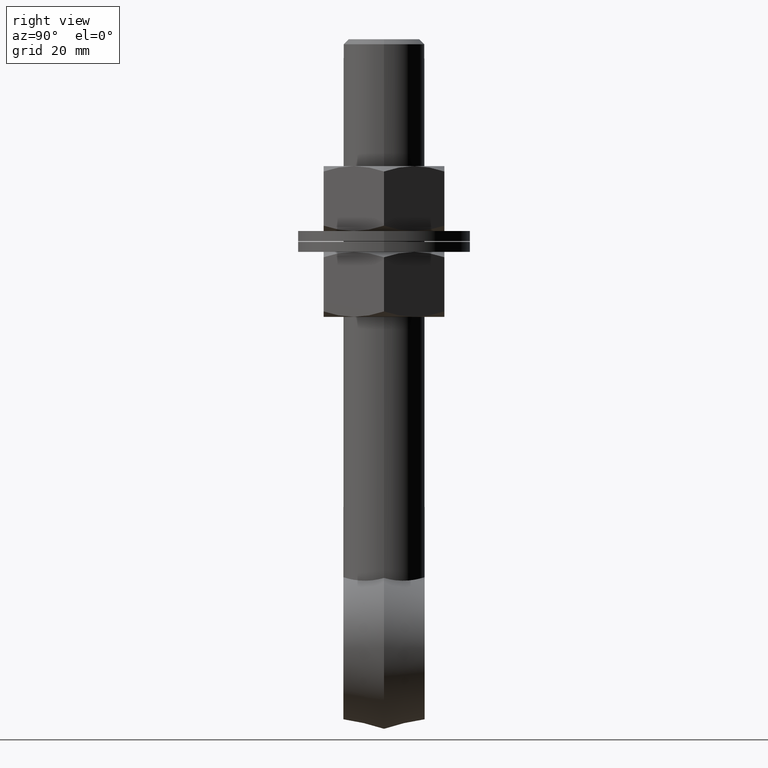
[diagram: clean part render]
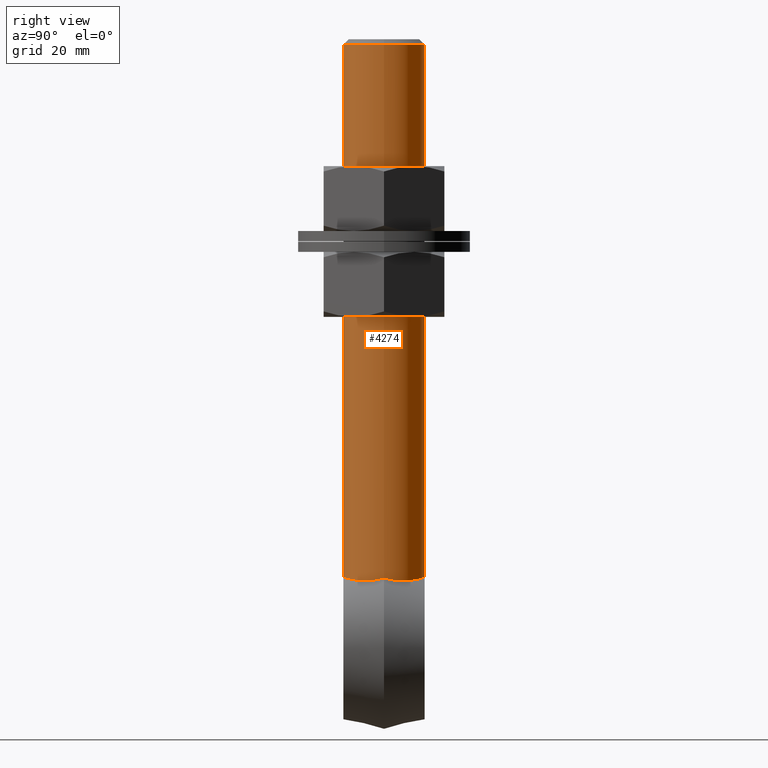
[diagram: same view with one face highlighted and labeled with its STEP entity id]
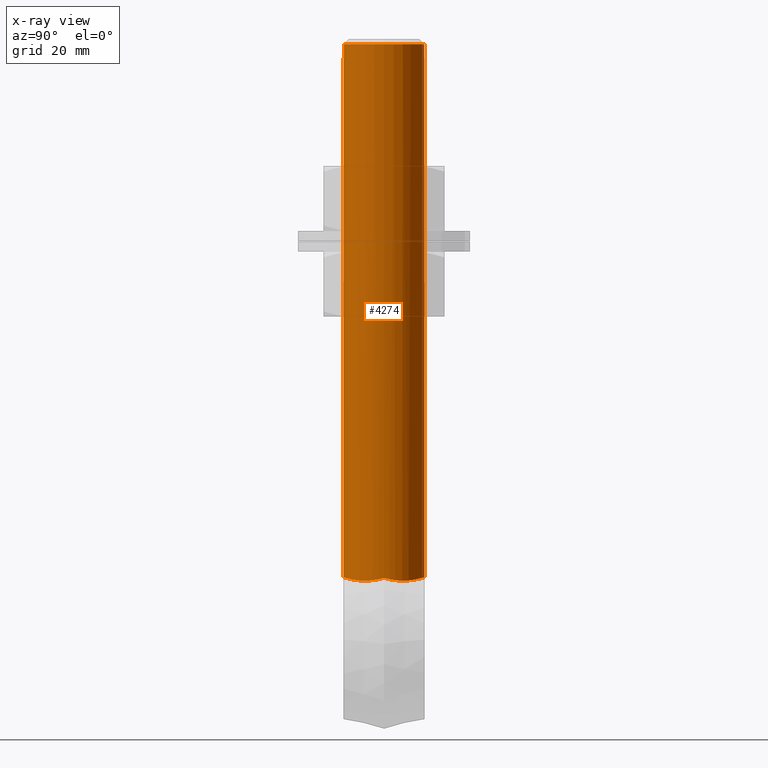
[diagram: x-ray of the same camera — body ghosted, the highlighted face saturated]
A machine part, right view. The second image highlights one B-rep face of the part: STEP entity #4274.
The next image is the same camera in x-ray: the body ghosted, the highlighted face saturated — about 0% of this face is hidden behind the body in this view.
In plain terms, the highlighted cylindrical surface (bore or boss wall) has radius 8 mm, axis along (0, 0, 1).
Its self-contained STEP definition (entity closure, byte-faithful):
#22 = CARTESIAN_POINT ( 'NONE',  ( -6.368982535474217777, -4.870115891597322388, -46.65712875931989601 ) ) ;
#83 = CARTESIAN_POINT ( 'NONE',  ( 4.672629499833451661, 6.498872145990299387, -46.40358584107910644 ) ) ;
#161 = CARTESIAN_POINT ( 'NONE',  ( 1.053568919362023015, 7.947631169145863872, -46.01710330969467577 ) ) ;
#221 = ORIENTED_EDGE ( 'NONE', *, *, #2864, .T. ) ;
#234 = ORIENTED_EDGE ( 'NONE', *, *, #2444, .T. ) ;
#333 = EDGE_CURVE ( 'NONE', #3383, #3353, #3903, .T. ) ;
#409 = CARTESIAN_POINT ( 'NONE',  ( 4.885161968591399173, -6.340651876630857053, -46.43670839117634586 ) ) ;
#449 = CARTESIAN_POINT ( 'NONE',  ( 7.201502270027906327, -3.523069277467284710, -46.70506845638958993 ) ) ;
#454 = CARTESIAN_POINT ( 'NONE',  ( -5.296677424045364901, -6.018233466242276286, -46.50207410234972372 ) ) ;
#470 = CARTESIAN_POINT ( 'NONE',  ( -6.956787808347909774, 3.985607949157346841, -46.70391942969244070 ) ) ;
#484 = EDGE_LOOP ( 'NONE', ( #221 ) ) ;
#489 = CARTESIAN_POINT ( 'NONE',  ( 3.769746804327677471E-15, 7.999999999999998224, -46.00000000000000000 ) ) ;
#587 = CARTESIAN_POINT ( 'NONE',  ( 0.5311507254782829035, 8.000000000000000000, -46.00000000000000711 ) ) ;
#605 = CARTESIAN_POINT ( 'NONE',  ( -2.581407963970466568, -7.576630926828364920, -46.13008939256251750 ) ) ;
#611 = ORIENTED_EDGE ( 'NONE', *, *, #2479, .F. ) ;
#626 = CARTESIAN_POINT ( 'NONE',  ( 7.587233725661400641, 2.550147896114320023, -46.64179044607067937 ) ) ;
#851 = CARTESIAN_POINT ( 'NONE',  ( 2.592540083375027393, -7.586378466352801553, -46.12847446892060788 ) ) ;
#865 = CARTESIAN_POINT ( 'NONE',  ( 4.672629499833453437, -6.498872145990301163, -46.40358584107907802 ) ) ;
#926 = CARTESIAN_POINT ( 'NONE',  ( -6.368982535474217777, 4.870115891597321500, -46.65712875931989601 ) ) ;
#950 = CARTESIAN_POINT ( 'NONE',  ( -3.559516607499972896, 7.183748590141200374, -46.24058701931257787 ) ) ;
#964 = CARTESIAN_POINT ( 'NONE',  ( -7.999999999999998224, 0.5111825544353236772, -46.29115923215309891 ) ) ;
#971 = CARTESIAN_POINT ( 'NONE',  ( -2.581407963970466124, 7.576630926828364920, -46.13008939256253882 ) ) ;
#993 = CARTESIAN_POINT ( 'NONE',  ( -0.5309884810981198022, 8.000000000000005329, -46.00000000000001421 ) ) ;
#1057 = CARTESIAN_POINT ( 'NONE',  ( 8.000000000000003553, 0.5116515334434743600, -46.29129461473142015 ) ) ;
#1101 = CARTESIAN_POINT ( 'NONE',  ( 7.738537598111692617, 2.045582005807094372, -46.58305127738711349 ) ) ;
#1150 = ORIENTED_EDGE ( 'NONE', *, *, #333, .F. ) ;
#1277 = CARTESIAN_POINT ( 'NONE',  ( 2.081760721982808260, -7.742165134187859898, -46.08095098862936112 ) ) ;
#1337 = CARTESIAN_POINT ( 'NONE',  ( 5.289646605668502310, -6.007354864425263230, -46.49976002063112190 ) ) ;
#1407 = CARTESIAN_POINT ( 'NONE',  ( 3.769746804327677471E-15, -7.999999999999996447, -45.99999999999998579 ) ) ;
#1421 = CARTESIAN_POINT ( 'NONE',  ( -7.202574841644560522, -3.521152928238089341, -46.70510136377198762 ) ) ;
#1438 = CARTESIAN_POINT ( 'NONE',  ( -5.296677424045364013, 6.018233466242275398, -46.50207410234974503 ) ) ;
#1456 = CARTESIAN_POINT ( 'NONE',  ( -2.078817070181086635, 7.729652182766437285, -46.08458324222557678 ) ) ;
#1463 = CARTESIAN_POINT ( 'NONE',  ( -7.999999999999998224, -0.5111825544353231221, -46.29115923215309891 ) ) ;
#1503 = FACE_OUTER_BOUND ( 'NONE', #2014, .T. ) ;
#1507 = CARTESIAN_POINT ( 'NONE',  ( 7.801796905248401970, 1.788755527101369536, -46.54554640850209069 ) ) ;
#1545 = CARTESIAN_POINT ( 'NONE',  ( 3.559663501039140421, 7.183536599615644391, -46.24063431415657277 ) ) ;
#1557 = VERTEX_POINT ( 'NONE', #2238 ) ;
#1575 = FACE_OUTER_BOUND ( 'NONE', #484, .T. ) ;
#1585 = B_SPLINE_CURVE_WITH_KNOTS ( 'NONE', 3,
 ( #1866, #1463, #5235, #2813, #4776, #1421, #2413, #22, #5253, #454, #3757, #5191, #5678, #4259, #605, #4317, #1981, #2936, #5274, #2971 ),
 .UNSPECIFIED., .F., .F.,
 ( 4, 2, 2, 2, 2, 2, 2, 2, 2, 4 ),
 ( 2.053501999344062252E-07, 0.001574777557771174378, 0.003149349765342414082, 0.004723921972913654871, 0.006298494180484894359, 0.007873066388056133846, 0.009447638595627375069, 0.01023492469941299221, 0.01102221080319861109, 0.01259678301076984884 ),
 .UNSPECIFIED. ) ;
#1659 = CARTESIAN_POINT ( 'NONE',  ( 3.769746804327677471E-15, 0.000000000000000000, 59.00000000000000000 ) ) ;
#1815 = CARTESIAN_POINT ( 'NONE',  ( 8.000000000000003553, 0.000000000000000000, -46.14359353944897180 ) ) ;
#1866 = CARTESIAN_POINT ( 'NONE',  ( -7.999999999999996447, 3.458686130082395050E-16, -46.14359353944896469 ) ) ;
#1981 = CARTESIAN_POINT ( 'NONE',  ( -1.824989893006003117, -7.793443047850342253, -46.06501590595963336 ) ) ;
#2014 = EDGE_LOOP ( 'NONE', ( #1150, #234, #3873, #611 ) ) ;
#2031 = AXIS2_PLACEMENT_3D ( 'NONE', #3908, #5401, #3045 ) ;
#2071 = CARTESIAN_POINT ( 'NONE',  ( 8.000000000000003553, 0.000000000000000000, -46.14359353944897180 ) ) ;
#2238 = CARTESIAN_POINT ( 'NONE',  ( 8.000000000000003553, 0.000000000000000000, 59.00000000000000000 ) ) ;
#2259 = CARTESIAN_POINT ( 'NONE',  ( 3.769746804327677471E-15, -7.999999999999996447, -45.99999999999998579 ) ) ;
#2340 = CARTESIAN_POINT ( 'NONE',  ( -6.035628685466995158, 5.276846800861127562, -46.61240504800566242 ) ) ;
#2365 = CARTESIAN_POINT ( 'NONE',  ( -1.055941467796955191, 7.947223302212572449, -46.01723143556848328 ) ) ;
#2385 = CARTESIAN_POINT ( 'NONE',  ( 6.956187848482490388, -3.986630653224429111, -46.70389462526871682 ) ) ;
#2413 = CARTESIAN_POINT ( 'NONE',  ( -6.956787808347908886, -3.985607949157347729, -46.70391942969242649 ) ) ;
#2444 = EDGE_CURVE ( 'NONE', #3383, #4742, #1585, .T. ) ;
#2469 = CARTESIAN_POINT ( 'NONE',  ( 2.592540083375024729, 7.586378466352804217, -46.12847446892061498 ) ) ;
#2479 = EDGE_CURVE ( 'NONE', #3353, #4546, #5971, .T. ) ;
#2508 = CARTESIAN_POINT ( 'NONE',  ( 6.368474160583242671, 4.870760742901215856, -46.65706529437814254 ) ) ;
#2711 = B_SPLINE_CURVE_WITH_KNOTS ( 'NONE', 3,
 ( #2259, #6072, #3186, #1277, #851, #3209, #3690, #865, #409, #1337, #4635, #5209, #5710, #2385, #449, #5230, #4725, #5651, #3333, #2867, #6118, #3273 ),
 .UNSPECIFIED., .F., .F.,
 ( 4, 2, 2, 2, 2, 2, 2, 2, 2, 2, 4 ),
 ( 0.01259678301076984884, 0.01417183633139893449, 0.01574688965202802188, 0.01732194297265710753, 0.01810946963297165035, 0.01889699629328619318, 0.02047204961391528230, 0.02204710293454437142, 0.02283462959485891772, 0.02362215625517346054, 0.02519720957580255313 ),
 .UNSPECIFIED. ) ;
#2813 = CARTESIAN_POINT ( 'NONE',  ( -7.753463443119793297, -2.037656324389635287, -46.58941813169490587 ) ) ;
#2825 = CARTESIAN_POINT ( 'NONE',  ( -7.202574841644555192, 3.521152928238088453, -46.70510136377198762 ) ) ;
#2833 = CYLINDRICAL_SURFACE ( 'NONE', #2031, 8.000000000000000000 ) ;
#2864 = EDGE_CURVE ( 'NONE', #1557, #1557, #4678, .T. ) ;
#2867 = CARTESIAN_POINT ( 'NONE',  ( 7.951395519887906715, -1.022758247203761739, -46.41102243249862624 ) ) ;
#2916 = CARTESIAN_POINT ( 'NONE',  ( 4.018996360935618739, 6.937066433396434917, -46.30519554626165046 ) ) ;
#2936 = CARTESIAN_POINT ( 'NONE',  ( -1.055941467796954081, -7.947223302212572449, -46.01723143556846196 ) ) ;
#2954 = CARTESIAN_POINT ( 'NONE',  ( 2.081760721982809592, 7.742165134187859010, -46.08095098862938954 ) ) ;
#2971 = CARTESIAN_POINT ( 'NONE',  ( 3.769746804327677471E-15, -7.999999999999996447, -45.99999999999998579 ) ) ;
#3045 = DIRECTION ( 'NONE',  ( 1.000000000000000000, 0.000000000000000000, 0.000000000000000000 ) ) ;
#3090 = EDGE_CURVE ( 'NONE', #4742, #4546, #2711, .T. ) ;
#3186 = CARTESIAN_POINT ( 'NONE',  ( 1.053568919362021683, -7.947631169145860319, -46.01710330969466156 ) ) ;
#3209 = CARTESIAN_POINT ( 'NONE',  ( 3.559663501039142197, -7.183536599615640839, -46.24063431415659409 ) ) ;
#3273 = CARTESIAN_POINT ( 'NONE',  ( 8.000000000000003553, 0.000000000000000000, -46.14359353944897180 ) ) ;
#3333 = CARTESIAN_POINT ( 'NONE',  ( 7.801796905248401970, -1.788755527101372866, -46.54554640850209779 ) ) ;
#3353 = VERTEX_POINT ( 'NONE', #5380 ) ;
#3382 = CARTESIAN_POINT ( 'NONE',  ( 4.885161968591400949, 6.340651876630857053, -46.43670839117636717 ) ) ;
#3383 = VERTEX_POINT ( 'NONE', #5464 ) ;
#3445 = CARTESIAN_POINT ( 'NONE',  ( 7.499597944784786918, 2.797220707477797497, -46.66306993915021906 ) ) ;
#3690 = CARTESIAN_POINT ( 'NONE',  ( 4.018996360935621404, -6.937066433396434029, -46.30519554626162204 ) ) ;
#3749 = CARTESIAN_POINT ( 'NONE',  ( -7.600958879076465280, 2.549711044828303574, -46.64860381599772410 ) ) ;
#3757 = CARTESIAN_POINT ( 'NONE',  ( -4.886099879437685090, -6.355995226199459225, -46.43570246697691317 ) ) ;
#3793 = CARTESIAN_POINT ( 'NONE',  ( -7.999999999999996447, 3.458686130082395050E-16, -46.14359353944896469 ) ) ;
#3825 = CARTESIAN_POINT ( 'NONE',  ( -4.018459475130494063, 6.937191852186678886, -46.30513153577354757 ) ) ;
#3871 = CARTESIAN_POINT ( 'NONE',  ( 7.201502270027909880, 3.523069277467282934, -46.70506845638958993 ) ) ;
#3873 = ORIENTED_EDGE ( 'NONE', *, *, #3090, .T. ) ;
#3888 = CARTESIAN_POINT ( 'NONE',  ( 6.034851535677972834, 5.277549672256823143, -46.61228359856082903 ) ) ;
#3903 = B_SPLINE_CURVE_WITH_KNOTS ( 'NONE', 3,
 ( #3793, #964, #4243, #4740, #3749, #2825, #470, #926, #2340, #1438, #5184, #3825, #950, #4723, #971, #1456, #4270, #2365, #993, #489 ),
 .UNSPECIFIED., .F., .F.,
 ( 4, 2, 2, 2, 2, 2, 2, 2, 2, 4 ),
 ( 2.053501999349743990E-07, 0.001574777557771175462, 0.003149349765342416251, 0.004723921972913656606, 0.006298494180484896961, 0.007873066388056137316, 0.009447638595627378538, 0.01023492469941299741, 0.01102221080319861629, 0.01259678301076985404 ),
 .UNSPECIFIED. ) ;
#3908 = CARTESIAN_POINT ( 'NONE',  ( 3.769746804327677471E-15, 0.000000000000000000, -76.00200000000000955 ) ) ;
#3926 = CARTESIAN_POINT ( 'NONE',  ( 5.289646605668502310, 6.007354864425263230, -46.49976002063116454 ) ) ;
#4243 = CARTESIAN_POINT ( 'NONE',  ( -7.951474976751572221, 1.020923285175577178, -46.41053895534364671 ) ) ;
#4259 = CARTESIAN_POINT ( 'NONE',  ( -2.831455103821336916, -7.486785863533163443, -46.15619729333621279 ) ) ;
#4270 = CARTESIAN_POINT ( 'NONE',  ( -1.824989893006004893, 7.793443047850342253, -46.06501590595965467 ) ) ;
#4274 = ADVANCED_FACE ( 'NONE', ( #1575, #1503 ), #2833, .T. ) ;
#4317 = CARTESIAN_POINT ( 'NONE',  ( -2.078817070181087079, -7.729652182766437285, -46.08458324222556968 ) ) ;
#4498 = AXIS2_PLACEMENT_3D ( 'NONE', #1659, #4517, #5487 ) ;
#4517 = DIRECTION ( 'NONE',  ( 0.000000000000000000, 0.000000000000000000, -1.000000000000000000 ) ) ;
#4546 = VERTEX_POINT ( 'NONE', #1815 ) ;
#4635 = CARTESIAN_POINT ( 'NONE',  ( 5.482684217106442048, -5.831651967984300633, -46.52984900773618904 ) ) ;
#4678 = CIRCLE ( 'NONE', #4498, 8.000000000000000000 ) ;
#4723 = CARTESIAN_POINT ( 'NONE',  ( -2.831455103821336028, 7.486785863533163443, -46.15619729333621990 ) ) ;
#4725 = CARTESIAN_POINT ( 'NONE',  ( 7.587233725661397976, -2.550147896114322243, -46.64179044607067937 ) ) ;
#4740 = CARTESIAN_POINT ( 'NONE',  ( -7.753463443119792409, 2.037656324389636175, -46.58941813169490587 ) ) ;
#4742 = VERTEX_POINT ( 'NONE', #1407 ) ;
#4776 = CARTESIAN_POINT ( 'NONE',  ( -7.600958879076465280, -2.549711044828303574, -46.64860381599770989 ) ) ;
#4817 = CARTESIAN_POINT ( 'NONE',  ( 7.951395519887904939, 1.022758247203759518, -46.41102243249861914 ) ) ;
#4861 = CARTESIAN_POINT ( 'NONE',  ( 5.482684217106442048, 5.831651967984302409, -46.52984900773621035 ) ) ;
#5184 = CARTESIAN_POINT ( 'NONE',  ( -4.886099879437687754, 6.355995226199457449, -46.43570246697691317 ) ) ;
#5191 = CARTESIAN_POINT ( 'NONE',  ( -4.018459475130491398, -6.937191852186679775, -46.30513153577353336 ) ) ;
#5209 = CARTESIAN_POINT ( 'NONE',  ( 6.034851535677971945, -5.277549672256824032, -46.61228359856082193 ) ) ;
#5230 = CARTESIAN_POINT ( 'NONE',  ( 7.499597944784786918, -2.797220707477799717, -46.66306993915021906 ) ) ;
#5235 = CARTESIAN_POINT ( 'NONE',  ( -7.951474976751572221, -1.020923285175576511, -46.41053895534364671 ) ) ;
#5253 = CARTESIAN_POINT ( 'NONE',  ( -6.035628685466995158, -5.276846800861127562, -46.61240504800564821 ) ) ;
#5274 = CARTESIAN_POINT ( 'NONE',  ( -0.5309884810981204684, -8.000000000000005329, -46.00000000000000711 ) ) ;
#5380 = CARTESIAN_POINT ( 'NONE',  ( 3.769746804327677471E-15, 7.999999999999998224, -46.00000000000000000 ) ) ;
#5401 = DIRECTION ( 'NONE',  ( 0.000000000000000000, 0.000000000000000000, 1.000000000000000000 ) ) ;
#5464 = CARTESIAN_POINT ( 'NONE',  ( -7.999999999999996447, 3.458686130082395050E-16, -46.14359353944896469 ) ) ;
#5487 = DIRECTION ( 'NONE',  ( 1.000000000000000000, 0.000000000000000000, 0.000000000000000000 ) ) ;
#5651 = CARTESIAN_POINT ( 'NONE',  ( 7.738537598111689064, -2.045582005807097037, -46.58305127738712059 ) ) ;
#5678 = CARTESIAN_POINT ( 'NONE',  ( -3.559516607499972451, -7.183748590141200374, -46.24058701931257076 ) ) ;
#5710 = CARTESIAN_POINT ( 'NONE',  ( 6.368474160583244448, -4.870760742901215856, -46.65706529437814964 ) ) ;
#5799 = CARTESIAN_POINT ( 'NONE',  ( 3.769746804327677471E-15, 7.999999999999998224, -46.00000000000000000 ) ) ;
#5824 = CARTESIAN_POINT ( 'NONE',  ( 6.956187848482485947, 3.986630653224429111, -46.70389462526870261 ) ) ;
#5971 = B_SPLINE_CURVE_WITH_KNOTS ( 'NONE', 3,
 ( #5799, #587, #161, #2954, #2469, #1545, #2916, #83, #3382, #3926, #4861, #3888, #2508, #5824, #3871, #3445, #626, #1101, #1507, #4817, #1057, #2071 ),
 .UNSPECIFIED., .F., .F.,
 ( 4, 2, 2, 2, 2, 2, 2, 2, 2, 2, 4 ),
 ( 0.01259678301076985404, 0.01417183633139893970, 0.01574688965202802535, 0.01732194297265711447, 0.01810946963297165729, 0.01889699629328620012, 0.02047204961391528924, 0.02204710293454437836, 0.02283462959485892119, 0.02362215625517346748, 0.02519720957580256007 ),
 .UNSPECIFIED. ) ;
#6072 = CARTESIAN_POINT ( 'NONE',  ( 0.5311507254782825704, -8.000000000000000000, -45.99999999999998579 ) ) ;
#6118 = CARTESIAN_POINT ( 'NONE',  ( 8.000000000000003553, -0.5116515334434738049, -46.29129461473140594 ) ) ;